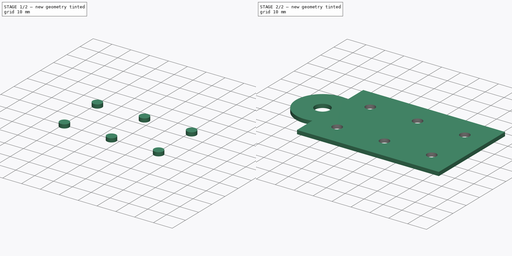
[diagram: build sequence overview — one tinted view per stage of 2, left to right]
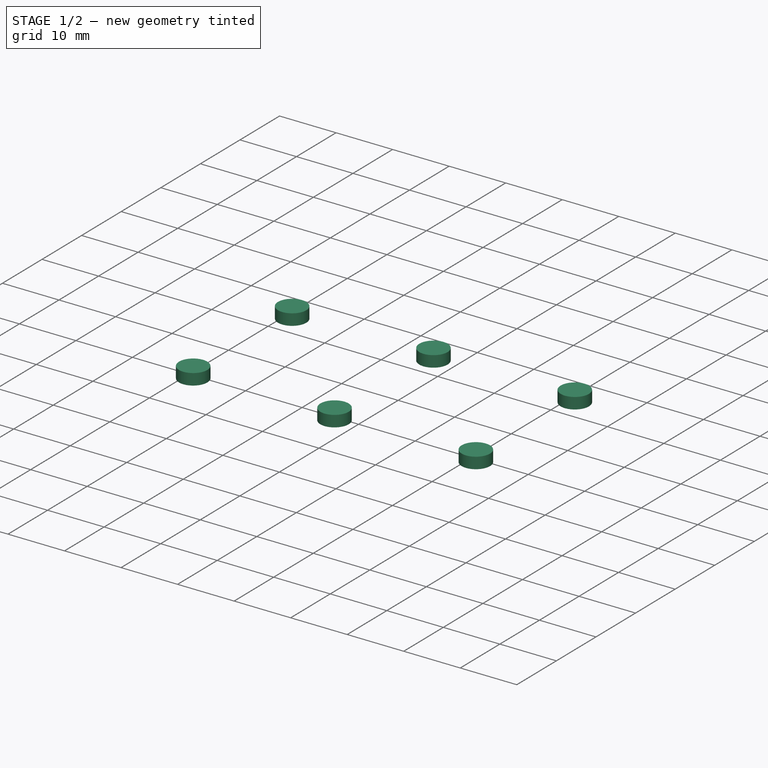
[diagram: stage 1 of 2 — iso view after this stage's code; geometry added in this stage tinted green]
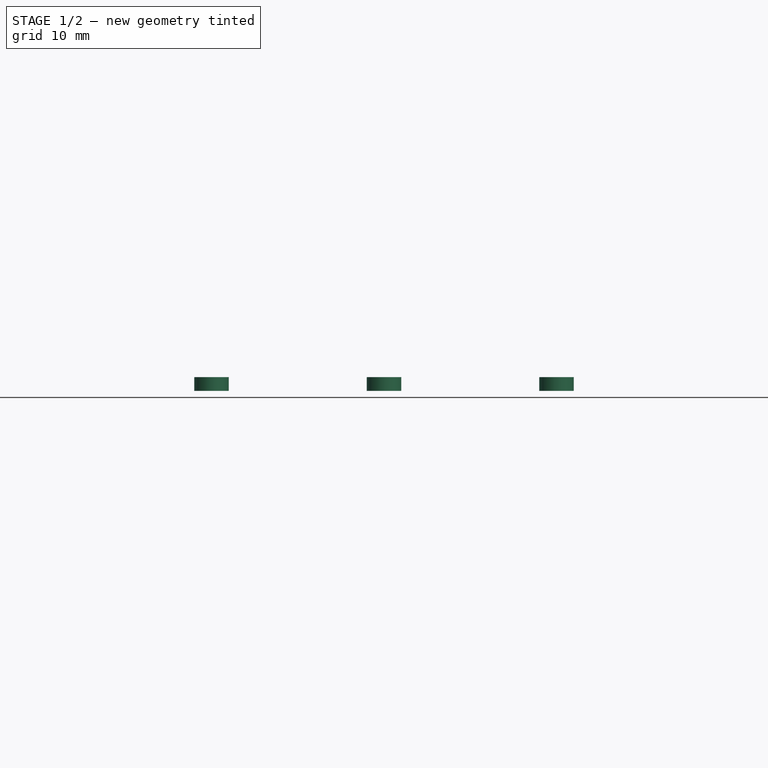
[diagram: stage 1 of 2 — front view after this stage's code; geometry added in this stage tinted green]
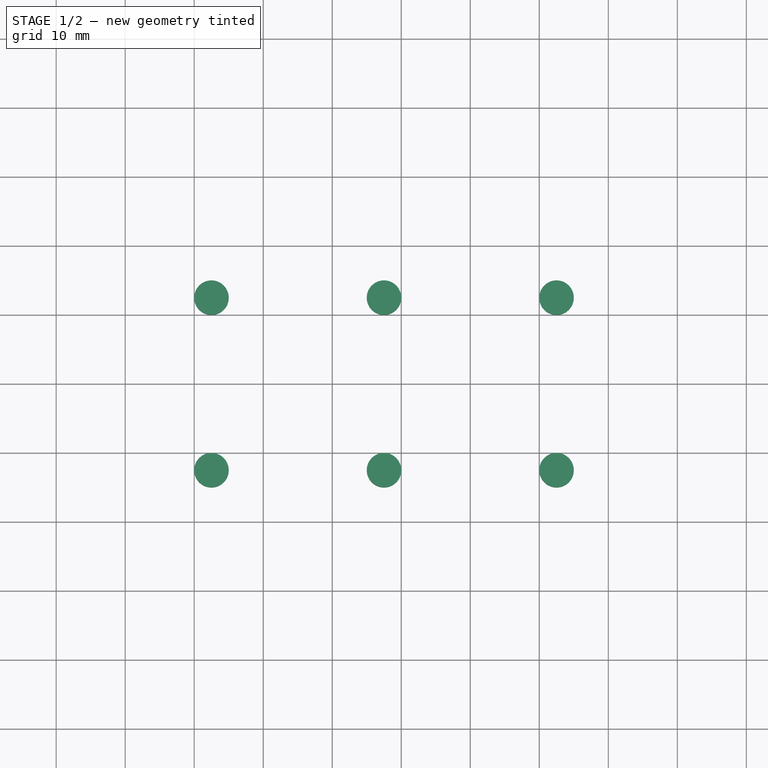
[diagram: stage 1 of 2 — top view after this stage's code; geometry added in this stage tinted green]
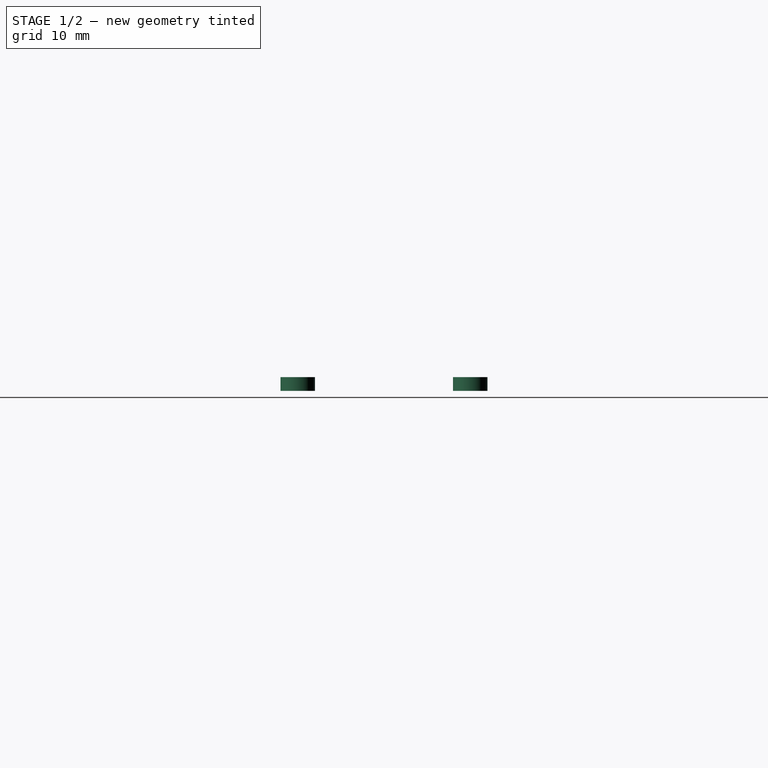
[diagram: stage 1 of 2 — right view after this stage's code; geometry added in this stage tinted green]
FCSTD DOCUMENT  (FreeCAD 0.17R13519 (Git))
Label: Tutorial-iPart.Step04
License: All rights reserved
LicenseURL: http://en.wikipedia.org/wiki/All_rights_reserved
objects: Sketcher::SketchObject×2, Part::Extrusion×2, Part::FeaturePython×2, Part::Cut×1, Spreadsheet::Sheet×1
note: 7 computed .brp shape members not serialized (recipe doc carries the construction recipe); baked Part::Feature solids carry a one-line shape summary decoded from their .brp

FEATURE [Part::Extrusion] Extrude001
  Base = -> Sketch001
  Dir = (0,0,1)
  DirMode = 2
  FaceMakerClass = Part::FaceMakerBullseye
  LengthFwd = 2
  LengthRev = 0
  Solid = true
  Symmetric = false
  expr: TaperAngleRev = Parameters.d_14
  expr: TaperAngle = Parameters.d_13
  expr: LengthRev = Parameters.d_12
  expr: LengthFwd = Parameters.d_11
FEATURE [Part::FeaturePython] Array  # Draft array (typed FeaturePython)
  Angle = 360
  ArrayType = 0
  Axis = (0,0,1)
  Base = -> Extrude001
  Center = (0,0,0)
  Fuse = false
  IntervalAxis = (0,0,0)
  IntervalX = (25,0,0)
  IntervalY = (0,-25,0)
  IntervalZ = (0,0,0)
  NumberPolar = 1
  NumberX = 3
  NumberY = 2
  NumberZ = 1
  expr: IntervalX.x = Parameters.Spacing
  expr: NumberY = Parameters.cnt_Y
  expr: NumberZ = Parameters.d_19
  expr: NumberPolar = Parameters.d_16
  expr: Angle = Parameters.d_15
  expr: NumberX = Parameters.cnt_X
  expr: IntervalY.y = -IntervalX.x
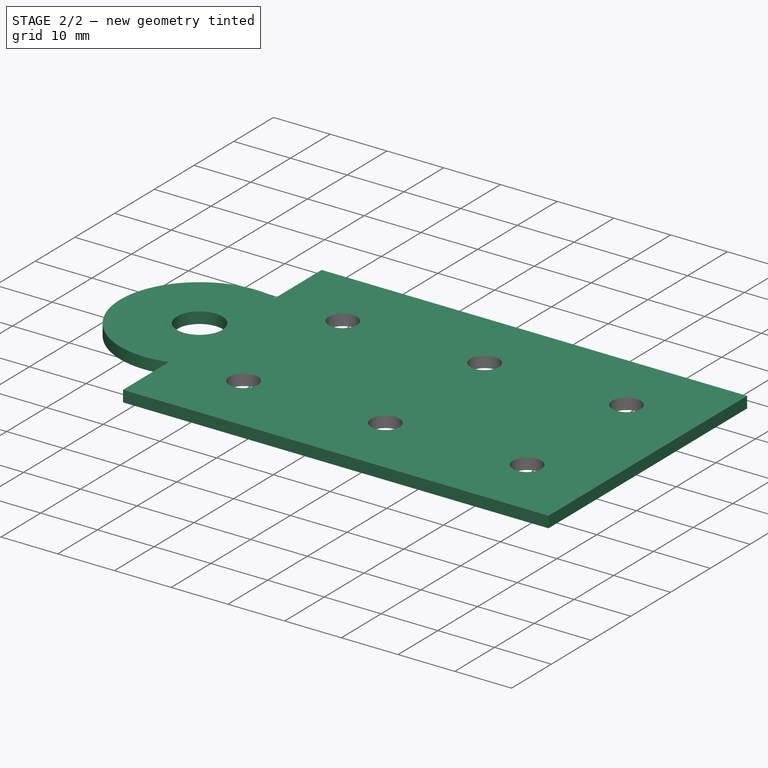
[diagram: stage 2 of 2 — iso view after this stage's code; geometry added in this stage tinted green]
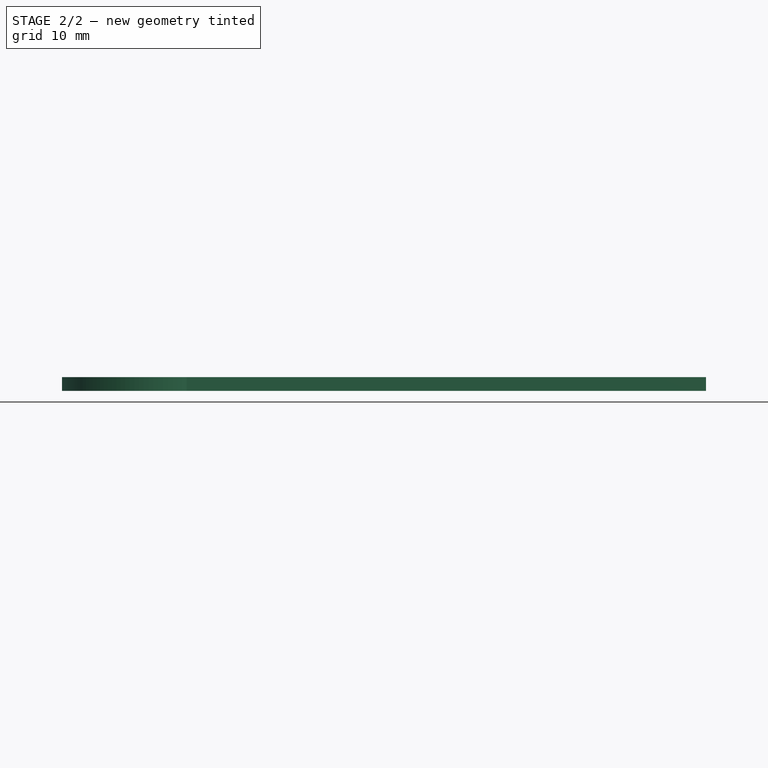
[diagram: stage 2 of 2 — front view after this stage's code; geometry added in this stage tinted green]
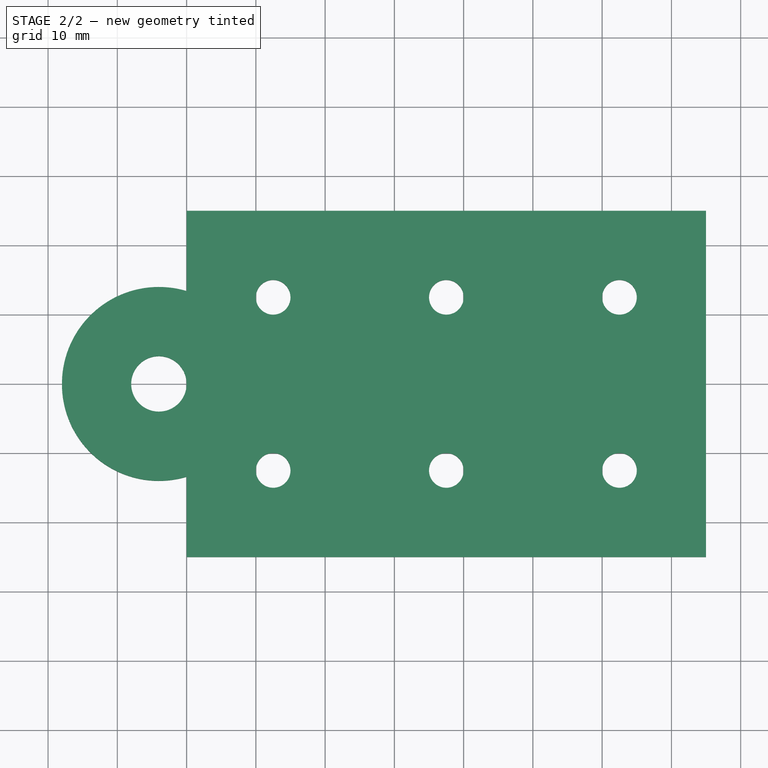
[diagram: stage 2 of 2 — top view after this stage's code; geometry added in this stage tinted green]
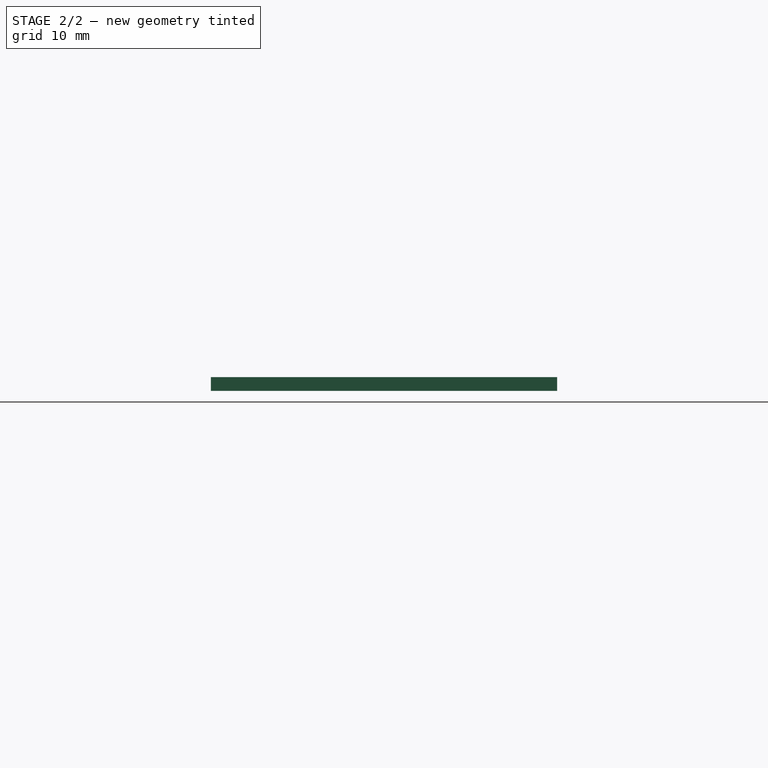
[diagram: stage 2 of 2 — right view after this stage's code; geometry added in this stage tinted green]
FEATURE [Sketcher::SketchObject] Sketch
  expr: Constraints[24] = Parameters.Length
  expr: Constraints[23] = Parameters.Width
  expr: Constraints[22] = Parameters.Raft
  expr: Constraints[21] = Parameters.Eyelet
  sketch-geometry (8):
    g0: Circle CenterX=-4 CenterY=0 CenterZ=0 NormalX=0 NormalY=0 NormalZ=1 AngleXU=0 Radius=4
    g1: ArcOfCircle CenterX=-4 CenterY=0 CenterZ=0 NormalX=0 NormalY=0 NormalZ=1 AngleXU=0 Radius=14 StartAngle=1.28104 EndAngle=5.00214
    g2: LineSegment StartX=0 StartY=13.4164 StartZ=0 EndX=0 EndY=25 EndZ=0
    g3: LineSegment StartX=0 StartY=25 StartZ=0 EndX=75 EndY=25 EndZ=0
    g4: LineSegment StartX=75 StartY=25 StartZ=0 EndX=75 EndY=-25 EndZ=0
    g5: LineSegment StartX=75 StartY=-25 StartZ=0 EndX=0 EndY=-25 EndZ=0
    g6: LineSegment StartX=0 StartY=-25 StartZ=0 EndX=0 EndY=-13.4164 EndZ=0
    g7: LineSegment [constr] StartX=-8 StartY=0 StartZ=0 EndX=-18 EndY=0 EndZ=0
  constraints (25):
    c: PointOnObject(g0,g-1)
    c: PointOnObject(g-1,g0)
    c: Coincident(g1,g0)
    c: PointOnObject(g1,g-2)
    c: PointOnObject(g1,g-2)
    c: Coincident(g1,g2)
    c: Coincident(g2,g3)
    c: Horizontal(g3)
    c: Coincident(g3,g4)
    c: Vertical(g4)
    c: Coincident(g4,g5)
    c: PointOnObject(g5,g-2)
    c: Horizontal(g5)
    c: Coincident(g5,g6)
    c: Coincident(g6,g1)
    c: PointOnObject(g2,g-2)
    c: Equal(g6,g2)
    c: PointOnObject(g7,g0)
    c: PointOnObject(g7,g1)
    c: PointOnObject(g7,g-1)
    c: PointOnObject(g7,g-1)
    c: Distance(g7,g-1) = 8
    c: Distance(g7) = 10
    c: Distance(g4) = 50
    c: Distance(g3) = 75
FEATURE [Sketcher::SketchObject] Sketch001
  MapMode = 2
  Support = -> [Sketch]
  expr: Constraints[5] = Parameters.d_6
  expr: Constraints[4] = Parameters.d_5
  expr: Constraints[3] = Parameters.Punch
  sketch-geometry (2):
    g0: Circle CenterX=12.5 CenterY=12.5 CenterZ=0 NormalX=0 NormalY=0 NormalZ=1 AngleXU=0 Radius=2.5
    g1: LineSegment [constr] StartX=11.6917 StartY=14.8657 StartZ=0 EndX=13.3083 EndY=10.1343 EndZ=0
  constraints (6):
    c: PointOnObject(g1,g0)
    c: PointOnObject(g1,g0)
    c: PointOnObject(g0,g1)
    c: Distance(g1) = 5
    c: DistanceX(g-1,g0) = 12.5
    c: DistanceY(g-1,g0) = 12.5
FEATURE [Part::Extrusion] Extrude
  Base = -> Sketch
  Dir = (0,0,1)
  DirMode = 2
  FaceMakerClass = Part::FaceMakerBullseye
  LengthFwd = 2
  LengthRev = 0
  Solid = true
  Symmetric = false
  expr: TaperAngleRev = Parameters.d_10
  expr: TaperAngle = Parameters.d_9
  expr: LengthRev = Parameters.d_8
  expr: LengthFwd = Parameters.Thickness
FEATURE [Part::Cut] Cut
  Base = -> Extrude
  Tool = -> Array
FEATURE [Spreadsheet::Sheet] Parameters
  cells = A1=Parameter; B1=Value; C1=Unit; D1=Source; E1=Property; F1=Formula; A2=Eyelet; B2(Eyelet)=8; C2=mm; D2=Sketch; E2=Constraints[21]; F2=variant; A3=Raft; B3(Raft)=10; C3=mm; D3=Sketch; E3=Constraints[22]; F3=variant; A4=Length; B4(Length)==2 * Raft + Spacing * (cnt_X - 1) + Punch; C4=mm; D4=Sketch; E4=Constraints[23]; F4=2 * Raft + Spacing * (cnt_X - 1) + Punch; A5=Width; B5(Width)==2 * Raft + Spacing * (cnt_Y - 1) + Punch; C5=mm; D5=Sketch; E5=Constraints[24]; F5=2 * Raft + Spacing * (cnt_Y - 1) + Punch; A6=Punch; B6(Punch)=5; C6=mm; D6=Sketch001; E6=Constraints[3]; F6=variant; A7=d_5; B7(d_5)==Raft + Punch / 2; C7=mm; D7=Sketch001; E7=Constraints[4]; F7=Raft + Punch / 2; A8=d_6; B8(d_6)==Spacing / 2 * (cnt_Y - 1); C8=mm; D8=Sketch001; E8=Constraints[5]; F8=Spacing / 2 * (cnt_Y - 1); A9=Thickness; B9(Thickness)=2; C9=mm; D9=Extrude; E9=LengthFwd; F9=const; A10=d_8; B10(d_8)=0; C10=mm; D10=Extrude; E10=LengthRev; F10=const; A11=d_9; B11(d_9)=0; C11=°; D11=Extrude; E11=TaperAngle; F11=const; A12=d_10; B12(d_10)=0; C12=°; D12=Extrude; E12=TaperAngleRev; F12=const; A13=d_11; B13(d_11)==Thickness; C13=mm; D13=Extrude001; E13=LengthFwd; F13=Thickness; A14=d_12; B14(d_12)=0; C14=mm; D14=Extrude001; E14=LengthRev; F14=const; A15=d_13; B15(d_13)=0; C15=°; D15=Extrude001; E15=TaperAngle; F15=const; A16=d_14; B16(d_14)=0; C16=°; D16=Extrude001; E16=TaperAngleRev; F16=const; A17=d_15; B17(d_15)=360; C17=°; D17=Array; E17=Angle; F17=const; A18=d_16; B18(d_16)=1; D18=Array; E18=NumberPolar; F18=const; A19=cnt_X; B19(cnt_X)=3; D19=Array; E19=NumberX; F19=variant; A20=cnt_Y; B20(cnt_Y)=2; D20=Array; E20=NumberY; F20=variant; A21=d_19; B21(d_19)=1; D21=Array; E21=NumberZ; F21=const; A22=Spacing; B22(Spacing)=25; C22=mm; F22=variant
FEATURE [Part::FeaturePython] Variations  # WARN: FeaturePython — macro-defined, semantics opaque (R4)
  Parameters = -> Parameters
  Variant = 0
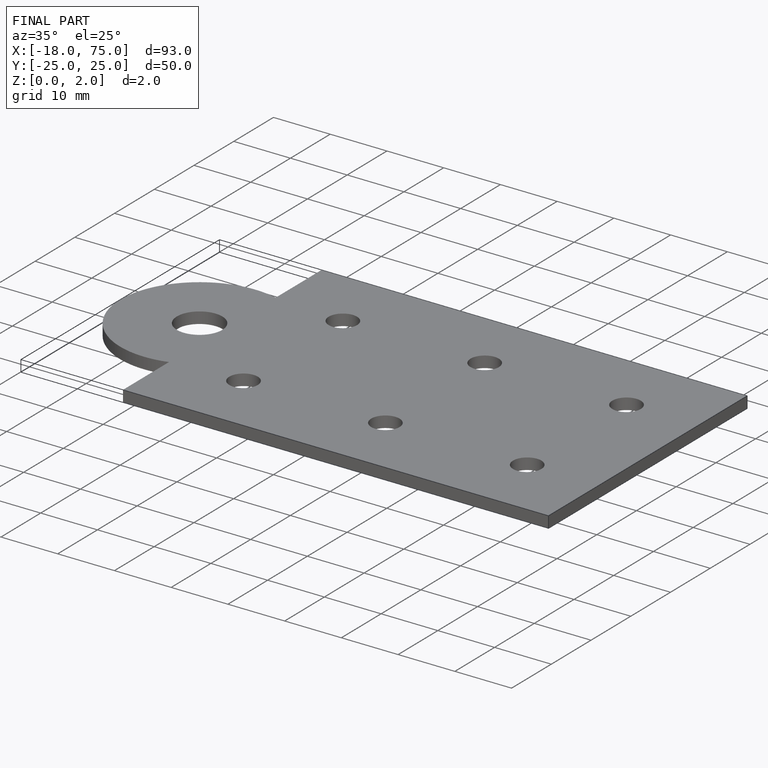
[diagram: finished part — iso view with bounding-box wireframe]
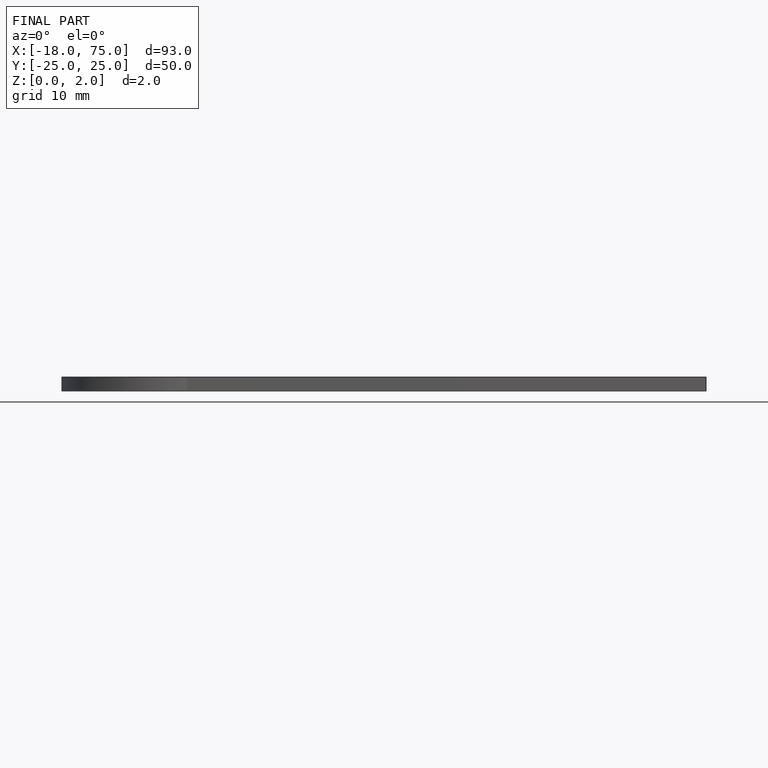
[diagram: finished part — front view with bounding-box wireframe]
